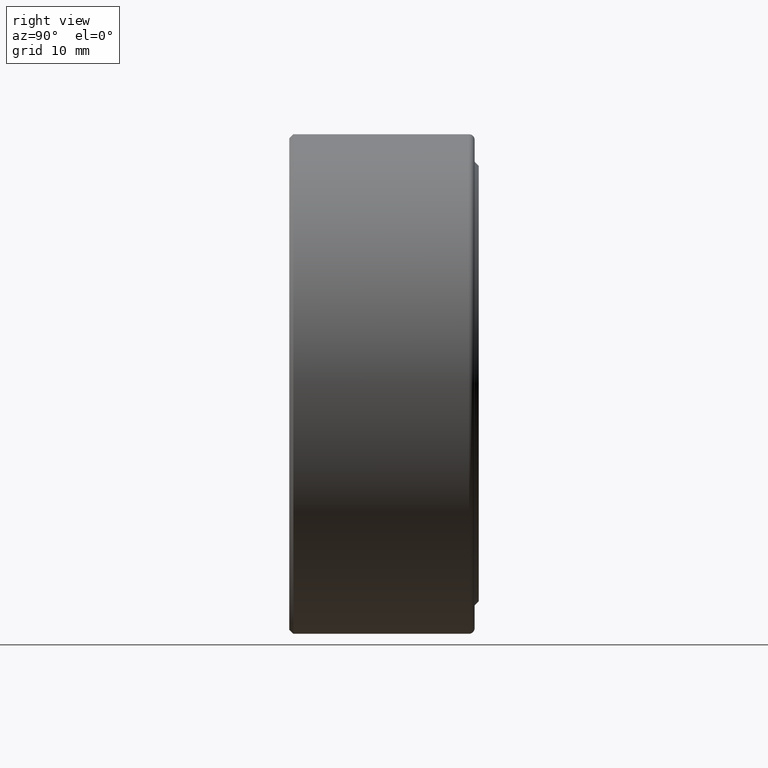
[diagram: clean part render]
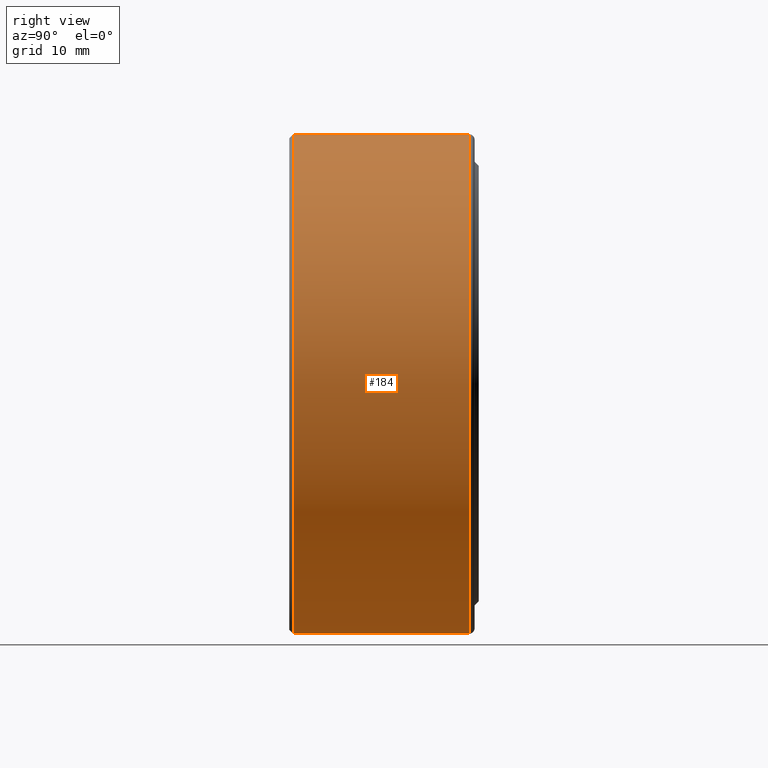
[diagram: same view with one face highlighted and labeled with its STEP entity id]
A machine part, right view. The second image highlights one B-rep face of the part: STEP entity #184.
In plain terms, the highlighted cylindrical surface (bore or boss wall) has radius 23.0187 mm, axis along (-0, 1, -0).
Its self-contained STEP definition (entity closure, byte-faithful):
#27 = DIRECTION ( 'NONE',  ( 0.0000000000000000000, 0.0000000000000000000, 1.000000000000000000 ) ) ;
#40 = CARTESIAN_POINT ( 'NONE',  ( 0.0000000000000000000, 0.6524999999999999700, 0.9062500000000001100 ) ) ;
#57 = DIRECTION ( 'NONE',  ( 0.0000000000000000000, 0.0000000000000000000, 1.000000000000000000 ) ) ;
#58 = VERTEX_POINT ( 'NONE', #134 ) ;
#98 = EDGE_LOOP ( 'NONE', ( #479 ) ) ;
#119 = FACE_OUTER_BOUND ( 'NONE', #98, .T. ) ;
#120 = DIRECTION ( 'NONE',  ( -0.0000000000000000000, 1.000000000000000000, -0.0000000000000000000 ) ) ;
#134 = CARTESIAN_POINT ( 'NONE',  ( 0.0000000000000000000, 0.01500000000000004500, 0.9062499999999998900 ) ) ;
#147 = FACE_OUTER_BOUND ( 'NONE', #521, .T. ) ;
#152 = AXIS2_PLACEMENT_3D ( 'NONE', #261, #120, #178 ) ;
#178 = DIRECTION ( 'NONE',  ( 0.0000000000000000000, 0.0000000000000000000, 1.000000000000000000 ) ) ;
#180 = VERTEX_POINT ( 'NONE', #40 ) ;
#184 = ADVANCED_FACE ( 'NONE', ( #119, #147 ), #396, .T. ) ;
#261 = CARTESIAN_POINT ( 'NONE',  ( 0.0000000000000000000, 0.01500000000000004500, 0.0000000000000000000 ) ) ;
#303 = CIRCLE ( 'NONE', #152, 0.9062499999999998900 ) ;
#360 = DIRECTION ( 'NONE',  ( -0.0000000000000000000, 1.000000000000000000, -0.0000000000000000000 ) ) ;
#396 = CYLINDRICAL_SURFACE ( 'NONE', #445, 0.9062499999999998900 ) ;
#432 = CIRCLE ( 'NONE', #596, 0.9062500000000001100 ) ;
#445 = AXIS2_PLACEMENT_3D ( 'NONE', #481, #567, #57 ) ;
#476 = EDGE_CURVE ( 'NONE', #180, #180, #432, .T. ) ;
#479 = ORIENTED_EDGE ( 'NONE', *, *, #476, .F. ) ;
#481 = CARTESIAN_POINT ( 'NONE',  ( 0.0000000000000000000, 0.0000000000000000000, 0.0000000000000000000 ) ) ;
#494 = EDGE_CURVE ( 'NONE', #58, #58, #303, .T. ) ;
#496 = CARTESIAN_POINT ( 'NONE',  ( 0.0000000000000000000, 0.6524999999999999700, 0.0000000000000000000 ) ) ;
#521 = EDGE_LOOP ( 'NONE', ( #534 ) ) ;
#534 = ORIENTED_EDGE ( 'NONE', *, *, #494, .T. ) ;
#567 = DIRECTION ( 'NONE',  ( -0.0000000000000000000, 1.000000000000000000, -0.0000000000000000000 ) ) ;
#596 = AXIS2_PLACEMENT_3D ( 'NONE', #496, #360, #27 ) ;